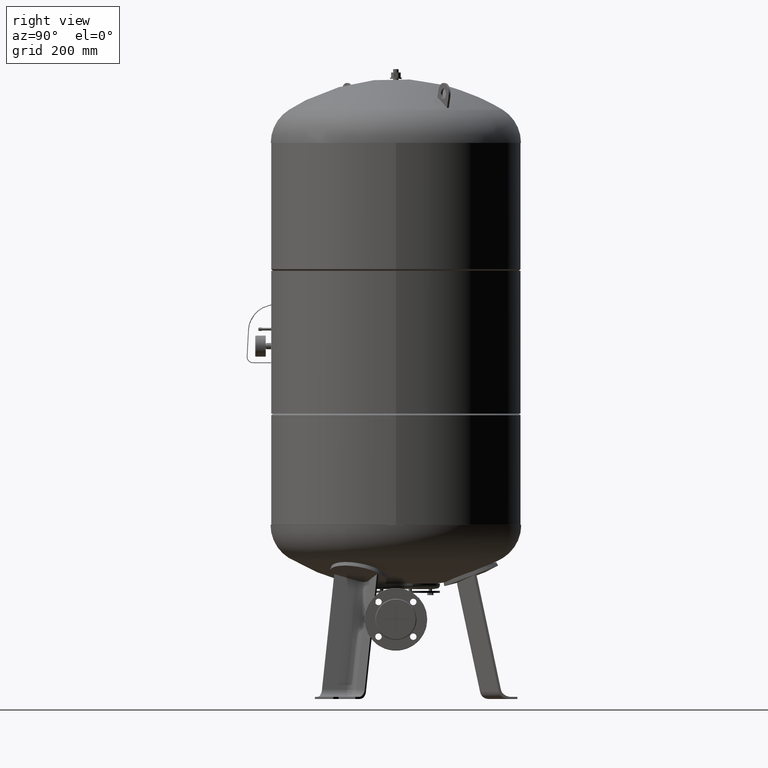
[diagram: clean part render]
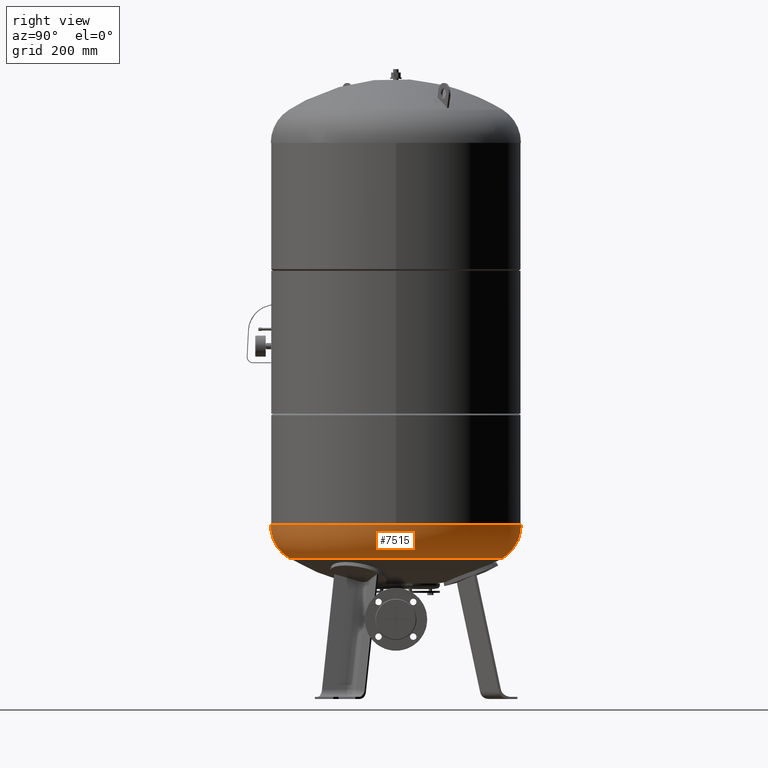
[diagram: same view with one face highlighted and labeled with its STEP entity id]
A machine part, right view. The second image highlights one B-rep face of the part: STEP entity #7515.
In plain terms, the highlighted toroidal blend (fillet) surface has major radius 254.5 mm and minor (blend) radius 115.5 mm.
Its self-contained STEP definition (entity closure, byte-faithful):
#7401=CARTESIAN_POINT('',(370.0,1.062956E-014,513.793879611869560));
#7402=VERTEX_POINT('',#7401);
#7409=CARTESIAN_POINT('',(-4.531044E-014,369.999999999999940,513.793879611869780));
#7410=VERTEX_POINT('',#7409);
#7411=CARTESIAN_POINT('',(0.0,-3.468087E-014,513.793879611869560));
#7412=DIRECTION('',(0.0,0.0,1.0));
#7413=DIRECTION('',(-1.0,0.0,0.0));
#7414=AXIS2_PLACEMENT_3D('',#7411,#7412,#7413);
#7415=CIRCLE('',#7414,370.0);
#7416=EDGE_CURVE('',#7402,#7410,#7415,.T.);
#7433=CARTESIAN_POINT('',(0.0,-370.000000000000060,513.793879611869330));
#7434=VERTEX_POINT('',#7433);
#7435=CARTESIAN_POINT('',(0.0,-315.931034482758610,415.985505725079460));
#7436=VERTEX_POINT('',#7435);
#7437=CARTESIAN_POINT('',(0.0,-254.500000000000060,513.793879611869440));
#7438=DIRECTION('',(1.0,0.0,0.0));
#7439=DIRECTION('',(0.0,-1.0,0.0));
#7440=AXIS2_PLACEMENT_3D('',#7437,#7438,#7439);
#7441=CIRCLE('',#7440,115.500000000000000);
#7442=EDGE_CURVE('',#7434,#7436,#7441,.T.);
#7452=CARTESIAN_POINT('',(-3.868912E-014,315.931034482758610,415.985505725079580));
#7453=VERTEX_POINT('',#7452);
#7454=CARTESIAN_POINT('',(-3.116623E-014,254.500000000000000,513.793879611869670));
#7455=DIRECTION('',(-1.0,0.0,0.0));
#7456=DIRECTION('',(0.0,1.0,0.0));
#7457=AXIS2_PLACEMENT_3D('',#7454,#7455,#7456);
#7458=CIRCLE('',#7457,115.500000000000000);
#7459=EDGE_CURVE('',#7410,#7453,#7458,.T.);
#7487=CARTESIAN_POINT('',(0.0,-1.671377E-014,415.985505725079520));
#7488=DIRECTION('',(0.0,0.0,1.0));
#7489=DIRECTION('',(-1.0,0.0,0.0));
#7490=AXIS2_PLACEMENT_3D('',#7487,#7488,#7489);
#7491=CIRCLE('',#7490,315.931034482758610);
#7492=EDGE_CURVE('',#7436,#7453,#7491,.T.);
#7497=CARTESIAN_POINT('',(0.0,-3.468087E-014,513.793879611869560));
#7498=DIRECTION('',(0.0,-1.836970E-016,1.0));
#7499=DIRECTION('',(0.0,-1.0,0.0));
#7500=AXIS2_PLACEMENT_3D('',#7497,#7498,#7499);
#7501=TOROIDAL_SURFACE('',#7500,254.500000000000030,115.500000000000000);
#7502=ORIENTED_EDGE('',*,*,#7442,.T.);
#7503=ORIENTED_EDGE('',*,*,#7492,.T.);
#7504=ORIENTED_EDGE('',*,*,#7459,.F.);
#7505=ORIENTED_EDGE('',*,*,#7416,.F.);
#7506=CARTESIAN_POINT('',(0.0,-3.468087E-014,513.793879611869560));
#7507=DIRECTION('',(0.0,0.0,1.0));
#7508=DIRECTION('',(-1.0,0.0,0.0));
#7509=AXIS2_PLACEMENT_3D('',#7506,#7507,#7508);
#7510=CIRCLE('',#7509,370.0);
#7511=EDGE_CURVE('',#7434,#7402,#7510,.T.);
#7512=ORIENTED_EDGE('',*,*,#7511,.F.);
#7513=EDGE_LOOP('',(#7502,#7503,#7504,#7505,#7512));
#7514=FACE_OUTER_BOUND('',#7513,.T.);
#7515=ADVANCED_FACE('',(#7514),#7501,.T.);